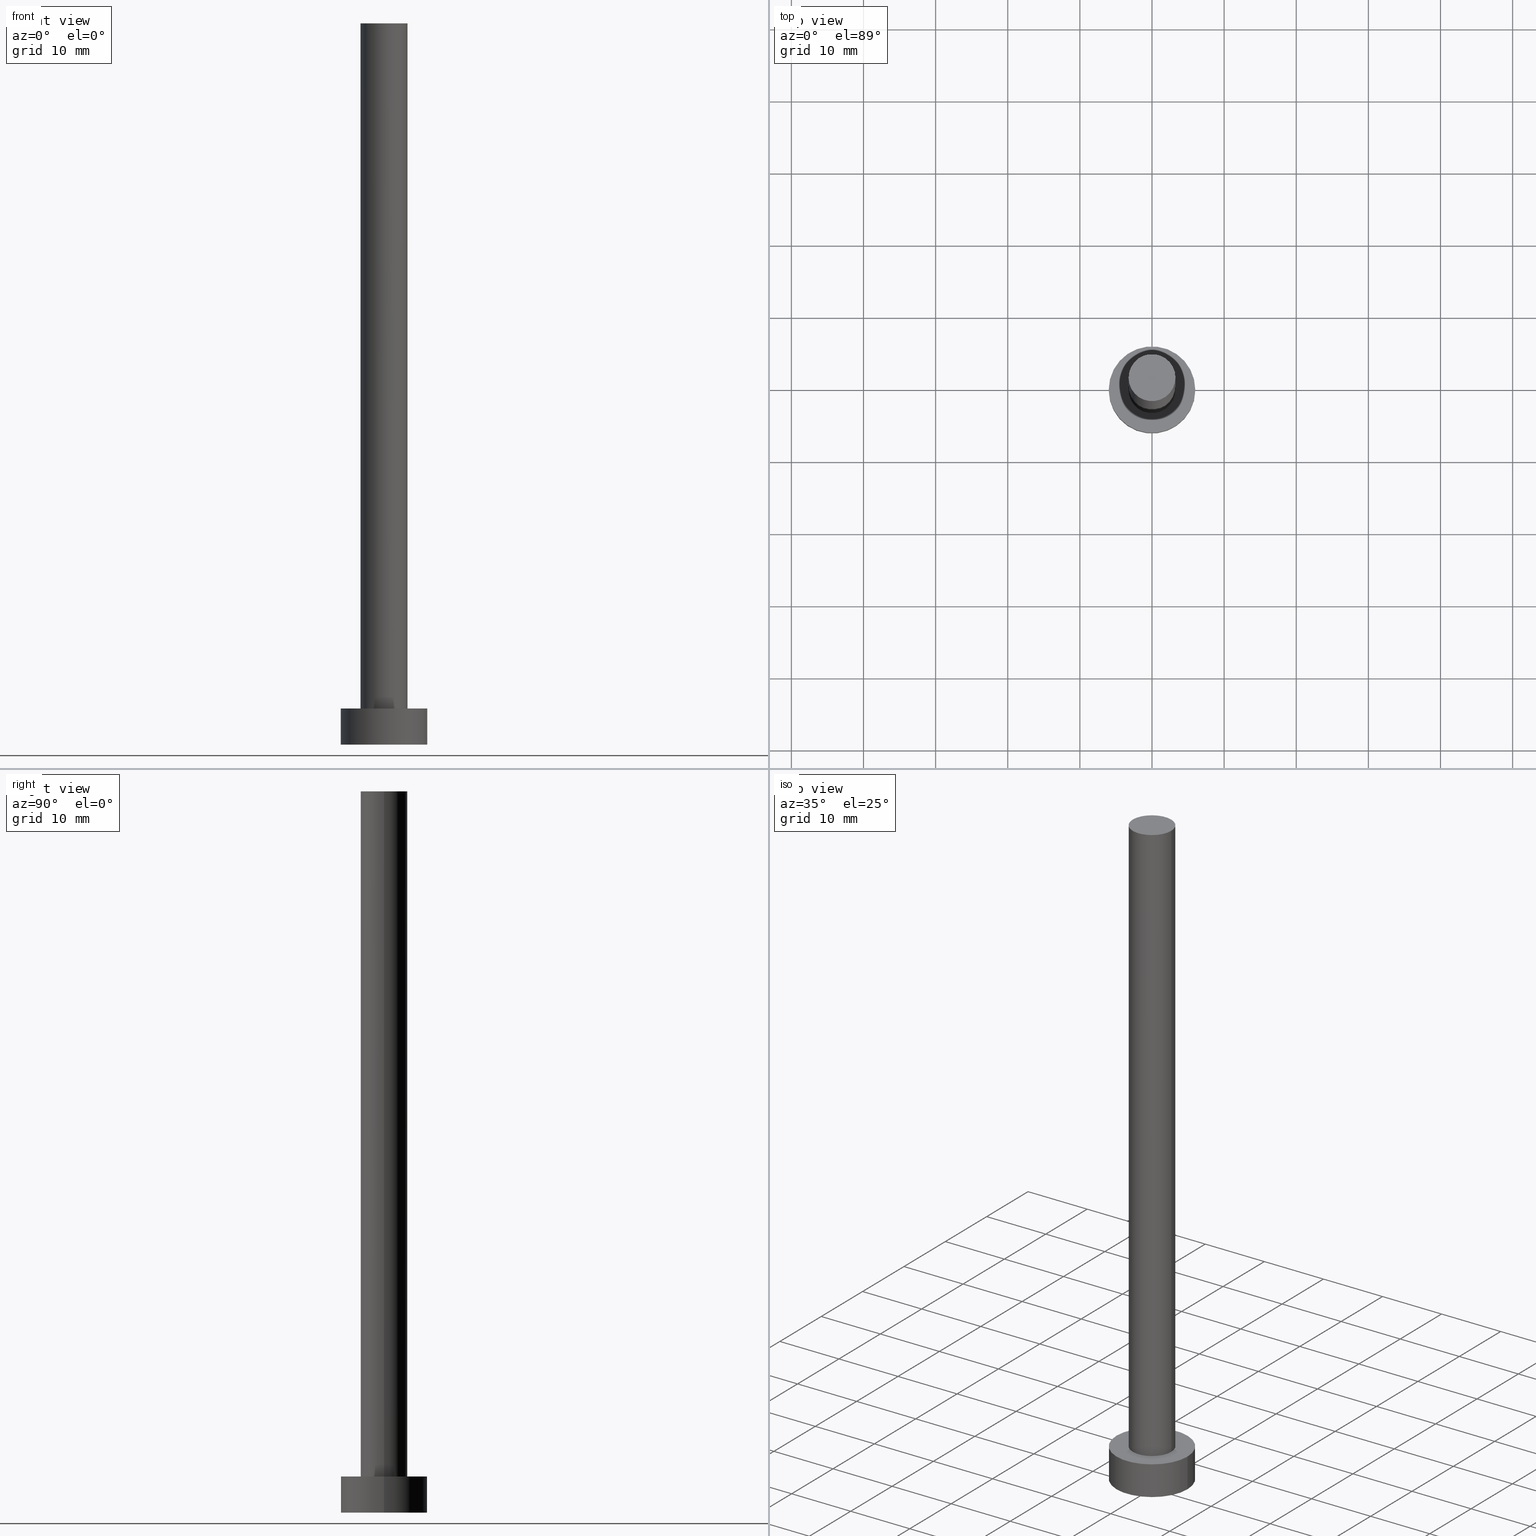
[diagram: canonical four-view strip — front | top / right | iso, engineering-drawing reading convention]
A machine part, canonical four-view strip (front | top / right | iso — engineering-drawing reading convention). The complete STEP part file that produces these views, byte-faithful:
ISO-10303-21;
HEADER;
FILE_DESCRIPTION (( 'STEP AP203' ),
    '1' );
FILE_NAME ('de6a.STEP',
    '2023-02-13T12:34:56',
    ( '' ),
    ( '' ),
    'SwSTEP 2.0',
    'SolidWorks 2019',
    '' );
FILE_SCHEMA (( 'CONFIG_CONTROL_DESIGN' ));
ENDSEC;

DATA;
#1 = ORIENTED_EDGE ( 'NONE', *, *, #228, .T. ) ;
#2 = ADVANCED_FACE ( 'NONE', ( #84 ), #184, .T. ) ;
#3 = PLANE ( 'NONE',  #112 ) ;
#4 = CC_DESIGN_SECURITY_CLASSIFICATION ( #134, ( #118 ) ) ;
#5 = FACE_OUTER_BOUND ( 'NONE', #41, .T. ) ;
#6 = EDGE_CURVE ( 'NONE', #146, #242, #198, .T. ) ;
#7 = ORIENTED_EDGE ( 'NONE', *, *, #6, .F. ) ;
#8 = AXIS2_PLACEMENT_3D ( 'NONE', #226, #133, #11 ) ;
#9 = DIRECTION ( 'NONE',  ( 0.000000000000000000, 0.000000000000000000, 1.000000000000000000 ) ) ;
#10 =( LENGTH_UNIT ( ) NAMED_UNIT ( * ) SI_UNIT ( .MILLI., .METRE. ) );
#11 = DIRECTION ( 'NONE',  ( 1.000000000000000000, 0.000000000000000000, -0.000000000000000000 ) ) ;
#12 = EDGE_CURVE ( 'NONE', #242, #146, #77, .T. ) ;
#13 = DIRECTION ( 'NONE',  ( -0.000000000000000000, -0.000000000000000000, -1.000000000000000000 ) ) ;
#14 = EDGE_CURVE ( 'NONE', #86, #200, #232, .T. ) ;
#15 = DATE_TIME_ROLE ( 'classification_date' ) ;
#16 = CALENDAR_DATE ( 2023, 13, 2 ) ;
#17 = LOCAL_TIME ( 13, 34, 56.00000000000000000, #214 ) ;
#18 = APPROVAL_STATUS ( 'not_yet_approved' ) ;
#19 = DATE_TIME_ROLE ( 'creation_date' ) ;
#20 = PRODUCT_DEFINITION_SHAPE ( 'NONE', 'NONE',  #241 ) ;
#21 = APPROVAL ( #58, 'NEUR�EN�' ) ;
#22 = CARTESIAN_POINT ( 'NONE',  ( -3.250000000000000444, 0.000000000000000000, 100.0000000000000000 ) ) ;
#23 = CARTESIAN_POINT ( 'NONE',  ( -6.000000000000000888, 0.000000000000000000, 5.000000000000000000 ) ) ;
#24 = CARTESIAN_POINT ( 'NONE',  ( 0.000000000000000000, 0.000000000000000000, 100.0000000000000000 ) ) ;
#25 = AXIS2_PLACEMENT_3D ( 'NONE', #47, #33, #155 ) ;
#26 = ORIENTED_EDGE ( 'NONE', *, *, #14, .T. ) ;
#27 = CARTESIAN_POINT ( 'NONE',  ( 3.250000000000000444, 3.980102097228898231E-16, 5.000000000000000000 ) ) ;
#28 = DIRECTION ( 'NONE',  ( -0.000000000000000000, -0.000000000000000000, -1.000000000000000000 ) ) ;
#29 = CC_DESIGN_PERSON_AND_ORGANIZATION_ASSIGNMENT ( #35, #216, ( #118 ) ) ;
#30 = CIRCLE ( 'NONE', #25, 3.250000000000000444 ) ;
#31 = DIRECTION ( 'NONE',  ( -0.000000000000000000, -0.000000000000000000, -1.000000000000000000 ) ) ;
#32 = DIRECTION ( 'NONE',  ( 0.000000000000000000, 0.000000000000000000, 1.000000000000000000 ) ) ;
#33 = DIRECTION ( 'NONE',  ( 0.000000000000000000, 0.000000000000000000, 1.000000000000000000 ) ) ;
#34 = CC_DESIGN_PERSON_AND_ORGANIZATION_ASSIGNMENT ( #193, #141, ( #134 ) ) ;
#35 = PERSON_AND_ORGANIZATION ( #105, #154 ) ;
#36 = PERSON_AND_ORGANIZATION_ROLE ( 'design_owner' ) ;
#37 = CARTESIAN_POINT ( 'NONE',  ( 0.000000000000000000, 0.000000000000000000, 0.000000000000000000 ) ) ;
#38 = DATE_AND_TIME ( #16, #17 ) ;
#39 = ORIENTED_EDGE ( 'NONE', *, *, #251, .F. ) ;
#40 = APPROVAL ( #254, 'NEUR�EN�' ) ;
#41 = EDGE_LOOP ( 'NONE', ( #168, #1 ) ) ;
#42 = CARTESIAN_POINT ( 'NONE',  ( 0.000000000000000000, 0.000000000000000000, 100.0000000000000000 ) ) ;
#43 = CARTESIAN_POINT ( 'NONE',  ( 3.250000000000000444, 3.980102097228898231E-16, 100.0000000000000000 ) ) ;
#44 = VERTEX_POINT ( 'NONE', #27 ) ;
#45 = AXIS2_PLACEMENT_3D ( 'NONE', #109, #207, #189 ) ;
#46 = ORIENTED_EDGE ( 'NONE', *, *, #171, .T. ) ;
#47 = CARTESIAN_POINT ( 'NONE',  ( 0.000000000000000000, 0.000000000000000000, 5.000000000000000000 ) ) ;
#48 = CARTESIAN_POINT ( 'NONE',  ( 6.000000000000000888, 7.347880794884120722E-16, 0.000000000000000000 ) ) ;
#49 = CARTESIAN_POINT ( 'NONE',  ( 0.000000000000000000, 0.000000000000000000, 5.000000000000000000 ) ) ;
#50 = LINE ( 'NONE', #190, #192 ) ;
#51 = DIRECTION ( 'NONE',  ( 1.000000000000000000, 0.000000000000000000, 0.000000000000000000 ) ) ;
#52 = CALENDAR_DATE ( 2023, 13, 2 ) ;
#53 = CIRCLE ( 'NONE', #223, 6.000000000000000888 ) ;
#54 = ORIENTED_EDGE ( 'NONE', *, *, #213, .F. ) ;
#55 = COORDINATED_UNIVERSAL_TIME_OFFSET ( 1, 0, .AHEAD. ) ;
#56 = ADVANCED_FACE ( 'NONE', ( #5 ), #3, .T. ) ;
#57 = AXIS2_PLACEMENT_3D ( 'NONE', #42, #169, #167 ) ;
#58 = APPROVAL_STATUS ( 'not_yet_approved' ) ;
#59 = ORIENTED_EDGE ( 'NONE', *, *, #101, .F. ) ;
#60 = COORDINATED_UNIVERSAL_TIME_OFFSET ( 1, 0, .AHEAD. ) ;
#61 = EDGE_LOOP ( 'NONE', ( #129, #46, #253, #217 ) ) ;
#62 = AXIS2_PLACEMENT_3D ( 'NONE', #236, #99, #201 ) ;
#63 = ORIENTED_EDGE ( 'NONE', *, *, #119, .F. ) ;
#64 = APPROVAL_PERSON_ORGANIZATION ( #177, #40, #116 ) ;
#65 = ORIENTED_EDGE ( 'NONE', *, *, #12, .T. ) ;
#66 = DIRECTION ( 'NONE',  ( 1.000000000000000000, 0.000000000000000000, 0.000000000000000000 ) ) ;
#67 = APPLICATION_CONTEXT ( 'configuration controlled 3d designs of mechanical parts and assemblies' ) ;
#68 = ORIENTED_EDGE ( 'NONE', *, *, #119, .T. ) ;
#69 = CARTESIAN_POINT ( 'NONE',  ( 3.250000000000000444, 3.980102097228898231E-16, 100.0000000000000000 ) ) ;
#70 = ADVANCED_FACE ( 'NONE', ( #202 ), #220, .T. ) ;
#71 = DIRECTION ( 'NONE',  ( 0.000000000000000000, 0.000000000000000000, 1.000000000000000000 ) ) ;
#72 = AXIS2_PLACEMENT_3D ( 'NONE', #130, #9, #124 ) ;
#73 = DIRECTION ( 'NONE',  ( -1.000000000000000000, 0.000000000000000000, 0.000000000000000000 ) ) ;
#74 = CC_DESIGN_APPROVAL ( #21, ( #134 ) ) ;
#75 = CARTESIAN_POINT ( 'NONE',  ( 6.000000000000000888, 7.347880794884120722E-16, 5.000000000000000000 ) ) ;
#76 =( NAMED_UNIT ( * ) SI_UNIT ( $, .STERADIAN. ) SOLID_ANGLE_UNIT ( ) );
#77 = CIRCLE ( 'NONE', #72, 6.000000000000000888 ) ;
#78 = DATE_AND_TIME ( #143, #103 ) ;
#79 = DATE_AND_TIME ( #163, #249 ) ;
#80 = CC_DESIGN_PERSON_AND_ORGANIZATION_ASSIGNMENT ( #83, #234, ( #118 ) ) ;
#81 = VERTEX_POINT ( 'NONE', #43 ) ;
#82 = EDGE_CURVE ( 'NONE', #104, #126, #203, .T. ) ;
#83 = PERSON_AND_ORGANIZATION ( #105, #154 ) ;
#84 = FACE_OUTER_BOUND ( 'NONE', #186, .T. ) ;
#85 = DIRECTION ( 'NONE',  ( 1.000000000000000000, 0.000000000000000000, -0.000000000000000000 ) ) ;
#86 = VERTEX_POINT ( 'NONE', #23 ) ;
#87 = ORIENTED_EDGE ( 'NONE', *, *, #82, .T. ) ;
#88 = CC_DESIGN_PERSON_AND_ORGANIZATION_ASSIGNMENT ( #248, #250, ( #241 ) ) ;
#89 = LINE ( 'NONE', #69, #93 ) ;
#90 = FACE_BOUND ( 'NONE', #224, .T. ) ;
#91 =( NAMED_UNIT ( * ) PLANE_ANGLE_UNIT ( ) SI_UNIT ( $, .RADIAN. ) );
#92 = PERSON_AND_ORGANIZATION ( #105, #154 ) ;
#93 = VECTOR ( 'NONE', #28, 1000.000000000000000 ) ;
#94 = APPLICATION_PROTOCOL_DEFINITION ( 'international standard', 'config_control_design', 1994, #121 ) ;
#95 = LOCAL_TIME ( 13, 34, 56.00000000000000000, #97 ) ;
#96 = CIRCLE ( 'NONE', #255, 3.250000000000000444 ) ;
#97 = COORDINATED_UNIVERSAL_TIME_OFFSET ( 1, 0, .AHEAD. ) ;
#98 = PERSON_AND_ORGANIZATION ( #105, #154 ) ;
#99 = DIRECTION ( 'NONE',  ( -0.000000000000000000, -0.000000000000000000, -1.000000000000000000 ) ) ;
#100 = EDGE_LOOP ( 'NONE', ( #153, #102, #150, #65 ) ) ;
#101 = EDGE_CURVE ( 'NONE', #104, #81, #151, .T. ) ;
#102 = ORIENTED_EDGE ( 'NONE', *, *, #14, .F. ) ;
#103 = LOCAL_TIME ( 13, 34, 56.00000000000000000, #175 ) ;
#104 = VERTEX_POINT ( 'NONE', #152 ) ;
#105 = PERSON ( 'NEUR�EN�', 'NEUR�EN�', 'NEUR�EN�', ('NEUR�EN�'), ('NEUR�EN�'), ('NEUR�EN�') ) ;
#106 = DIRECTION ( 'NONE',  ( 0.000000000000000000, 0.000000000000000000, 1.000000000000000000 ) ) ;
#107 = CYLINDRICAL_SURFACE ( 'NONE', #45, 6.000000000000000888 ) ;
#108 = AXIS2_PLACEMENT_3D ( 'NONE', #243, #31, #73 ) ;
#109 = CARTESIAN_POINT ( 'NONE',  ( 0.000000000000000000, 0.000000000000000000, 5.000000000000000000 ) ) ;
#110 = FACE_OUTER_BOUND ( 'NONE', #204, .T. ) ;
#111 = ADVANCED_FACE ( 'NONE', ( #222 ), #135, .F. ) ;
#112 = AXIS2_PLACEMENT_3D ( 'NONE', #237, #106, #85 ) ;
#113 = PLANE ( 'NONE',  #191 ) ;
#114 = CARTESIAN_POINT ( 'NONE',  ( 0.000000000000000000, 0.000000000000000000, 5.000000000000000000 ) ) ;
#115 = CC_DESIGN_DATE_AND_TIME_ASSIGNMENT ( #79, #19, ( #241 ) ) ;
#116 = APPROVAL_ROLE ( '' ) ;
#117 = ADVANCED_BREP_SHAPE_REPRESENTATION ( 'de6a', ( #137, #158 ), #149 ) ;
#118 = PRODUCT_DEFINITION_FORMATION_WITH_SPECIFIED_SOURCE ( 'LIBOVOLN�', '', #140, .NOT_KNOWN. ) ;
#119 = EDGE_CURVE ( 'NONE', #81, #44, #89, .T. ) ;
#120 = DIRECTION ( 'NONE',  ( 1.000000000000000000, 0.000000000000000000, 0.000000000000000000 ) ) ;
#121 = APPLICATION_CONTEXT ( 'configuration controlled 3d designs of mechanical parts and assemblies' ) ;
#122 = DATE_AND_TIME ( #235, #95 ) ;
#123 = ORIENTED_EDGE ( 'NONE', *, *, #233, .T. ) ;
#124 = DIRECTION ( 'NONE',  ( 1.000000000000000000, 0.000000000000000000, 0.000000000000000000 ) ) ;
#125 = ADVANCED_FACE ( 'NONE', ( #90, #110 ), #113, .T. ) ;
#126 = VERTEX_POINT ( 'NONE', #131 ) ;
#127 = AXIS2_PLACEMENT_3D ( 'NONE', #24, #240, #66 ) ;
#128 = DIRECTION ( 'NONE',  ( 0.000000000000000000, 0.000000000000000000, 1.000000000000000000 ) ) ;
#129 = ORIENTED_EDGE ( 'NONE', *, *, #233, .F. ) ;
#130 = CARTESIAN_POINT ( 'NONE',  ( 0.000000000000000000, 0.000000000000000000, 0.000000000000000000 ) ) ;
#131 = CARTESIAN_POINT ( 'NONE',  ( -3.250000000000000444, 0.000000000000000000, 5.000000000000000000 ) ) ;
#132 = VECTOR ( 'NONE', #225, 1000.000000000000000 ) ;
#133 = DIRECTION ( 'NONE',  ( 0.000000000000000000, 0.000000000000000000, 1.000000000000000000 ) ) ;
#134 = SECURITY_CLASSIFICATION ( '', '', #139 ) ;
#135 = PLANE ( 'NONE',  #8 ) ;
#136 = DIRECTION ( 'NONE',  ( 0.000000000000000000, 0.000000000000000000, 1.000000000000000000 ) ) ;
#137 = MANIFOLD_SOLID_BREP ( 'P�idat vysunut�m3', #173 ) ;
#138 = CIRCLE ( 'NONE', #164, 3.250000000000000444 ) ;
#139 = SECURITY_CLASSIFICATION_LEVEL ( 'unclassified' ) ;
#140 = PRODUCT ( 'de6a', 'de6a', '', ( #215 ) ) ;
#141 = PERSON_AND_ORGANIZATION_ROLE ( 'classification_officer' ) ;
#142 = APPROVAL_ROLE ( '' ) ;
#143 = CALENDAR_DATE ( 2023, 13, 2 ) ;
#144 = EDGE_LOOP ( 'NONE', ( #239, #7 ) ) ;
#145 = DATE_AND_TIME ( #52, #209 ) ;
#146 = VERTEX_POINT ( 'NONE', #48 ) ;
#147 = ORIENTED_EDGE ( 'NONE', *, *, #228, .F. ) ;
#148 = DIRECTION ( 'NONE',  ( 1.000000000000000000, 0.000000000000000000, 0.000000000000000000 ) ) ;
#149 =( GEOMETRIC_REPRESENTATION_CONTEXT ( 3 ) GLOBAL_UNCERTAINTY_ASSIGNED_CONTEXT ( ( #162 ) ) GLOBAL_UNIT_ASSIGNED_CONTEXT ( ( #10, #91, #76 ) ) REPRESENTATION_CONTEXT ( 'NONE', 'WORKASPACE' ) );
#150 = ORIENTED_EDGE ( 'NONE', *, *, #246, .T. ) ;
#151 = CIRCLE ( 'NONE', #127, 3.250000000000000444 ) ;
#152 = CARTESIAN_POINT ( 'NONE',  ( -3.250000000000000444, 0.000000000000000000, 100.0000000000000000 ) ) ;
#153 = ORIENTED_EDGE ( 'NONE', *, *, #171, .F. ) ;
#154 = ORGANIZATION ( 'NEUR�EN�', 'NEUR�EN�', '' ) ;
#155 = DIRECTION ( 'NONE',  ( 1.000000000000000000, 0.000000000000000000, 0.000000000000000000 ) ) ;
#156 = CARTESIAN_POINT ( 'NONE',  ( 6.000000000000000888, 7.347880794884120722E-16, 5.000000000000000000 ) ) ;
#157 = DIRECTION ( 'NONE',  ( 1.000000000000000000, 0.000000000000000000, 0.000000000000000000 ) ) ;
#158 = AXIS2_PLACEMENT_3D ( 'NONE', #37, #212, #120 ) ;
#159 = CARTESIAN_POINT ( 'NONE',  ( 0.000000000000000000, 0.000000000000000000, 100.0000000000000000 ) ) ;
#160 = APPROVAL_DATE_TIME ( #78, #21 ) ;
#161 = VECTOR ( 'NONE', #218, 1000.000000000000000 ) ;
#162 = UNCERTAINTY_MEASURE_WITH_UNIT (LENGTH_MEASURE( 1.000000000000000082E-05 ), #10, 'distance_accuracy_value', 'NONE');
#163 = CALENDAR_DATE ( 2023, 13, 2 ) ;
#164 = AXIS2_PLACEMENT_3D ( 'NONE', #159, #210, #157 ) ;
#165 = DIRECTION ( 'NONE',  ( 0.000000000000000000, 0.000000000000000000, 1.000000000000000000 ) ) ;
#166 = CC_DESIGN_PERSON_AND_ORGANIZATION_ASSIGNMENT ( #98, #36, ( #140 ) ) ;
#167 = DIRECTION ( 'NONE',  ( -1.000000000000000000, 0.000000000000000000, 0.000000000000000000 ) ) ;
#168 = ORIENTED_EDGE ( 'NONE', *, *, #101, .T. ) ;
#169 = DIRECTION ( 'NONE',  ( -0.000000000000000000, -0.000000000000000000, -1.000000000000000000 ) ) ;
#170 = CARTESIAN_POINT ( 'NONE',  ( 0.000000000000000000, 0.000000000000000000, 0.000000000000000000 ) ) ;
#171 = EDGE_CURVE ( 'NONE', #200, #146, #172, .T. ) ;
#172 = LINE ( 'NONE', #75, #132 ) ;
#173 = CLOSED_SHELL ( 'NONE', ( #2, #70, #219, #125, #111, #206, #56 ) ) ;
#174 = FACE_OUTER_BOUND ( 'NONE', #100, .T. ) ;
#175 = COORDINATED_UNIVERSAL_TIME_OFFSET ( 1, 0, .AHEAD. ) ;
#176 = APPROVAL_DATE_TIME ( #145, #187 ) ;
#177 = PERSON_AND_ORGANIZATION ( #105, #154 ) ;
#178 = PRODUCT_RELATED_PRODUCT_CATEGORY ( 'detail', '', ( #140 ) ) ;
#179 = APPROVAL_PERSON_ORGANIZATION ( #195, #187, #196 ) ;
#180 = ORIENTED_EDGE ( 'NONE', *, *, #213, .T. ) ;
#181 = CARTESIAN_POINT ( 'NONE',  ( 0.000000000000000000, 0.000000000000000000, 5.000000000000000000 ) ) ;
#182 = APPROVAL_PERSON_ORGANIZATION ( #92, #21, #142 ) ;
#183 = ORIENTED_EDGE ( 'NONE', *, *, #251, .T. ) ;
#184 = CYLINDRICAL_SURFACE ( 'NONE', #57, 3.250000000000000444 ) ;
#185 = DESIGN_CONTEXT ( 'detailed design', #121, 'design' ) ;
#186 = EDGE_LOOP ( 'NONE', ( #147, #68, #180, #231 ) ) ;
#187 = APPROVAL ( #18, 'NEUR�EN�' ) ;
#188 = CARTESIAN_POINT ( 'NONE',  ( -6.000000000000000888, 0.000000000000000000, 0.000000000000000000 ) ) ;
#189 = DIRECTION ( 'NONE',  ( -1.000000000000000000, 0.000000000000000000, 0.000000000000000000 ) ) ;
#190 = CARTESIAN_POINT ( 'NONE',  ( -6.000000000000000888, 0.000000000000000000, 5.000000000000000000 ) ) ;
#191 = AXIS2_PLACEMENT_3D ( 'NONE', #49, #71, #244 ) ;
#192 = VECTOR ( 'NONE', #13, 1000.000000000000000 ) ;
#193 = PERSON_AND_ORGANIZATION ( #105, #154 ) ;
#194 = EDGE_LOOP ( 'NONE', ( #63, #59, #87, #183 ) ) ;
#195 = PERSON_AND_ORGANIZATION ( #105, #154 ) ;
#196 = APPROVAL_ROLE ( '' ) ;
#197 = AXIS2_PLACEMENT_3D ( 'NONE', #170, #128, #148 ) ;
#198 = CIRCLE ( 'NONE', #197, 6.000000000000000888 ) ;
#199 = CC_DESIGN_DATE_AND_TIME_ASSIGNMENT ( #38, #15, ( #134 ) ) ;
#200 = VERTEX_POINT ( 'NONE', #156 ) ;
#201 = DIRECTION ( 'NONE',  ( -1.000000000000000000, 0.000000000000000000, 0.000000000000000000 ) ) ;
#202 = FACE_OUTER_BOUND ( 'NONE', #61, .T. ) ;
#203 = LINE ( 'NONE', #22, #161 ) ;
#204 = EDGE_LOOP ( 'NONE', ( #26, #123 ) ) ;
#205 = DIRECTION ( 'NONE',  ( 1.000000000000000000, 0.000000000000000000, 0.000000000000000000 ) ) ;
#206 = ADVANCED_FACE ( 'NONE', ( #208 ), #245, .T. ) ;
#207 = DIRECTION ( 'NONE',  ( -0.000000000000000000, -0.000000000000000000, -1.000000000000000000 ) ) ;
#208 = FACE_OUTER_BOUND ( 'NONE', #194, .T. ) ;
#209 = LOCAL_TIME ( 13, 34, 56.00000000000000000, #60 ) ;
#210 = DIRECTION ( 'NONE',  ( 0.000000000000000000, 0.000000000000000000, 1.000000000000000000 ) ) ;
#211 = APPLICATION_PROTOCOL_DEFINITION ( 'international standard', 'config_control_design', 1994, #67 ) ;
#212 = DIRECTION ( 'NONE',  ( 0.000000000000000000, 0.000000000000000000, 1.000000000000000000 ) ) ;
#213 = EDGE_CURVE ( 'NONE', #44, #126, #30, .T. ) ;
#214 = COORDINATED_UNIVERSAL_TIME_OFFSET ( 1, 0, .AHEAD. ) ;
#215 = MECHANICAL_CONTEXT ( 'NONE', #67, 'mechanical' ) ;
#216 = PERSON_AND_ORGANIZATION_ROLE ( 'design_supplier' ) ;
#217 = ORIENTED_EDGE ( 'NONE', *, *, #246, .F. ) ;
#218 = DIRECTION ( 'NONE',  ( -0.000000000000000000, -0.000000000000000000, -1.000000000000000000 ) ) ;
#219 = ADVANCED_FACE ( 'NONE', ( #174 ), #107, .T. ) ;
#220 = CYLINDRICAL_SURFACE ( 'NONE', #62, 6.000000000000000888 ) ;
#221 = AXIS2_PLACEMENT_3D ( 'NONE', #181, #165, #205 ) ;
#222 = FACE_OUTER_BOUND ( 'NONE', #144, .T. ) ;
#223 = AXIS2_PLACEMENT_3D ( 'NONE', #114, #32, #229 ) ;
#224 = EDGE_LOOP ( 'NONE', ( #39, #54 ) ) ;
#225 = DIRECTION ( 'NONE',  ( -0.000000000000000000, -0.000000000000000000, -1.000000000000000000 ) ) ;
#226 = CARTESIAN_POINT ( 'NONE',  ( 0.000000000000000000, 0.000000000000000000, 0.000000000000000000 ) ) ;
#227 = CC_DESIGN_APPROVAL ( #187, ( #241 ) ) ;
#228 = EDGE_CURVE ( 'NONE', #81, #104, #138, .T. ) ;
#229 = DIRECTION ( 'NONE',  ( 1.000000000000000000, 0.000000000000000000, 0.000000000000000000 ) ) ;
#230 = SHAPE_DEFINITION_REPRESENTATION ( #20, #117 ) ;
#231 = ORIENTED_EDGE ( 'NONE', *, *, #82, .F. ) ;
#232 = CIRCLE ( 'NONE', #221, 6.000000000000000888 ) ;
#233 = EDGE_CURVE ( 'NONE', #200, #86, #53, .T. ) ;
#234 = PERSON_AND_ORGANIZATION_ROLE ( 'creator' ) ;
#235 = CALENDAR_DATE ( 2023, 13, 2 ) ;
#236 = CARTESIAN_POINT ( 'NONE',  ( 0.000000000000000000, 0.000000000000000000, 5.000000000000000000 ) ) ;
#237 = CARTESIAN_POINT ( 'NONE',  ( 0.000000000000000000, 0.000000000000000000, 100.0000000000000000 ) ) ;
#238 = CC_DESIGN_APPROVAL ( #40, ( #118 ) ) ;
#239 = ORIENTED_EDGE ( 'NONE', *, *, #12, .F. ) ;
#240 = DIRECTION ( 'NONE',  ( 0.000000000000000000, 0.000000000000000000, 1.000000000000000000 ) ) ;
#241 = PRODUCT_DEFINITION ( 'NEZN�M�', '', #118, #185 ) ;
#242 = VERTEX_POINT ( 'NONE', #188 ) ;
#243 = CARTESIAN_POINT ( 'NONE',  ( 0.000000000000000000, 0.000000000000000000, 100.0000000000000000 ) ) ;
#244 = DIRECTION ( 'NONE',  ( 1.000000000000000000, 0.000000000000000000, -0.000000000000000000 ) ) ;
#245 = CYLINDRICAL_SURFACE ( 'NONE', #108, 3.250000000000000444 ) ;
#246 = EDGE_CURVE ( 'NONE', #86, #242, #50, .T. ) ;
#247 = CARTESIAN_POINT ( 'NONE',  ( 0.000000000000000000, 0.000000000000000000, 5.000000000000000000 ) ) ;
#248 = PERSON_AND_ORGANIZATION ( #105, #154 ) ;
#249 = LOCAL_TIME ( 13, 34, 56.00000000000000000, #55 ) ;
#250 = PERSON_AND_ORGANIZATION_ROLE ( 'creator' ) ;
#251 = EDGE_CURVE ( 'NONE', #126, #44, #96, .T. ) ;
#252 = APPROVAL_DATE_TIME ( #122, #40 ) ;
#253 = ORIENTED_EDGE ( 'NONE', *, *, #6, .T. ) ;
#254 = APPROVAL_STATUS ( 'not_yet_approved' ) ;
#255 = AXIS2_PLACEMENT_3D ( 'NONE', #247, #136, #51 ) ;
ENDSEC;
END-ISO-10303-21;
